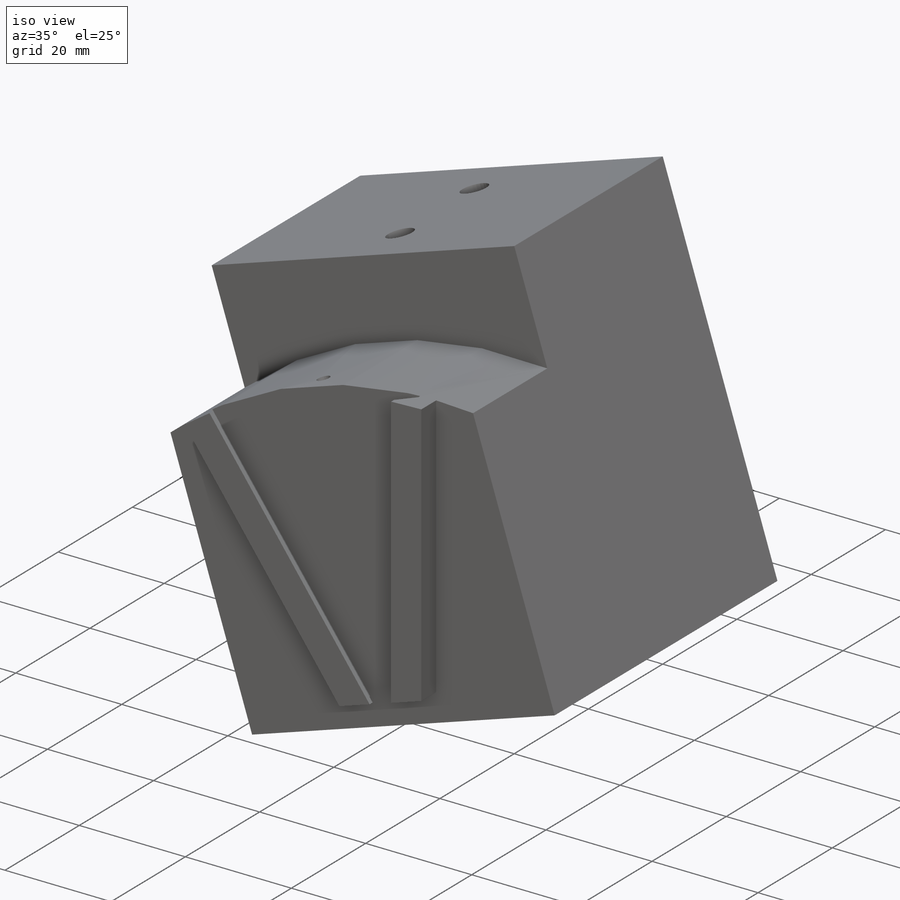
[diagram: iso view]
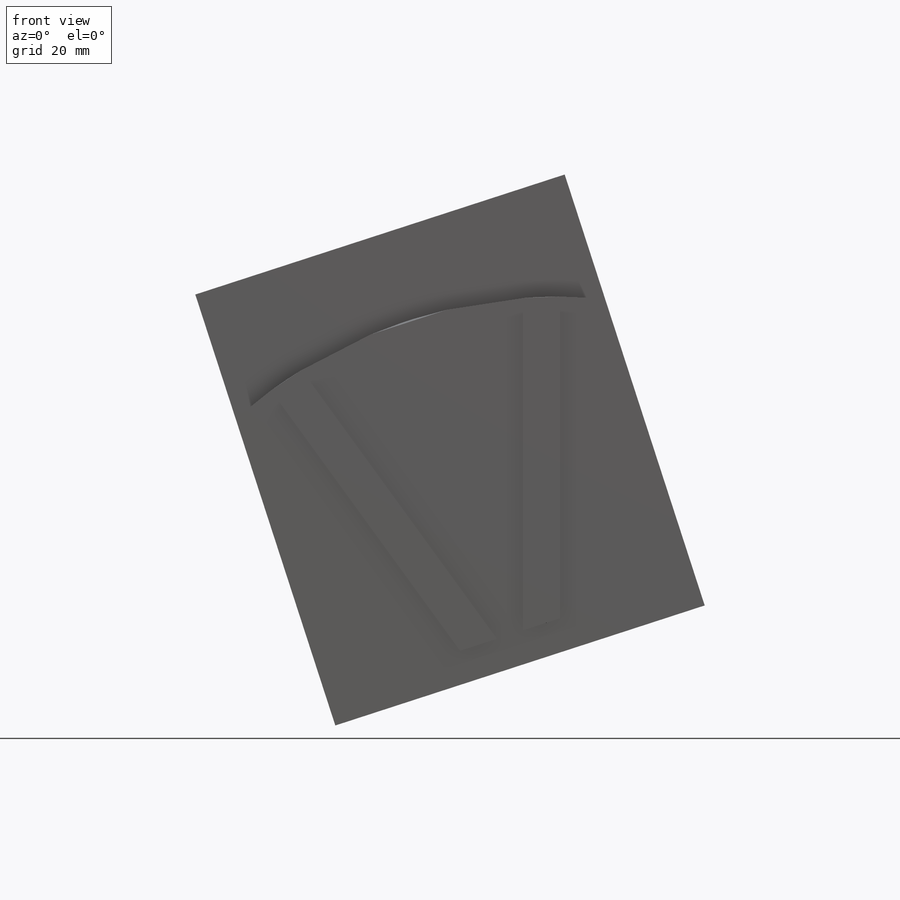
[diagram: front view]
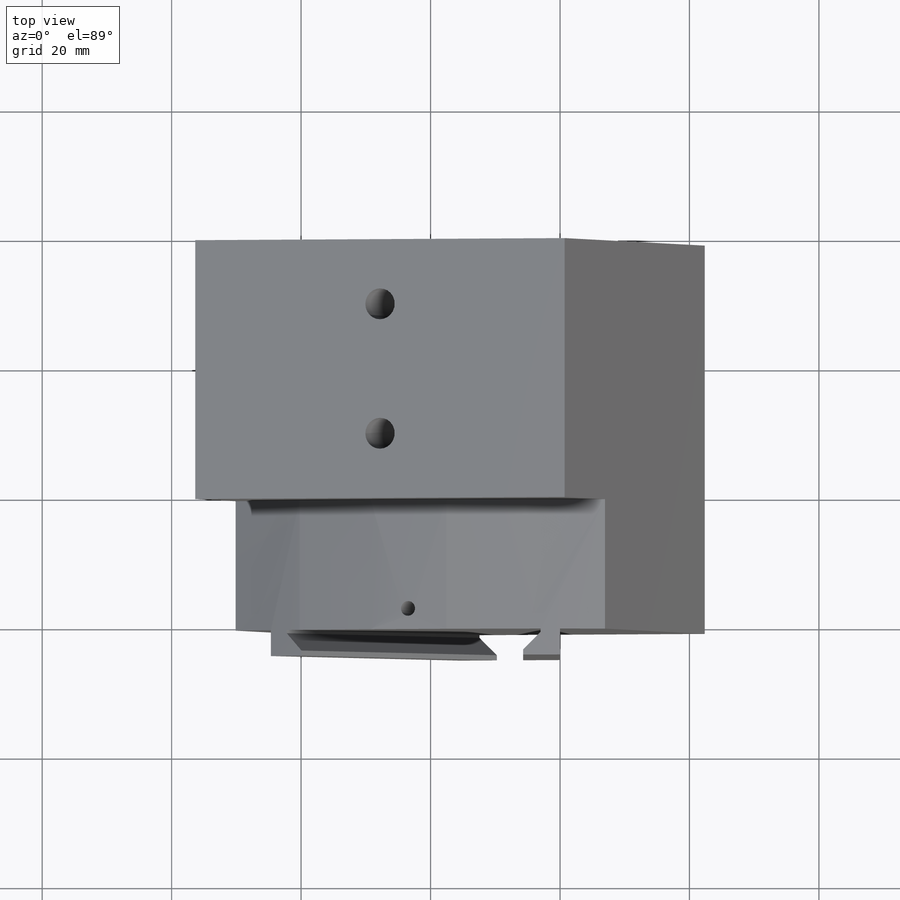
[diagram: top view]
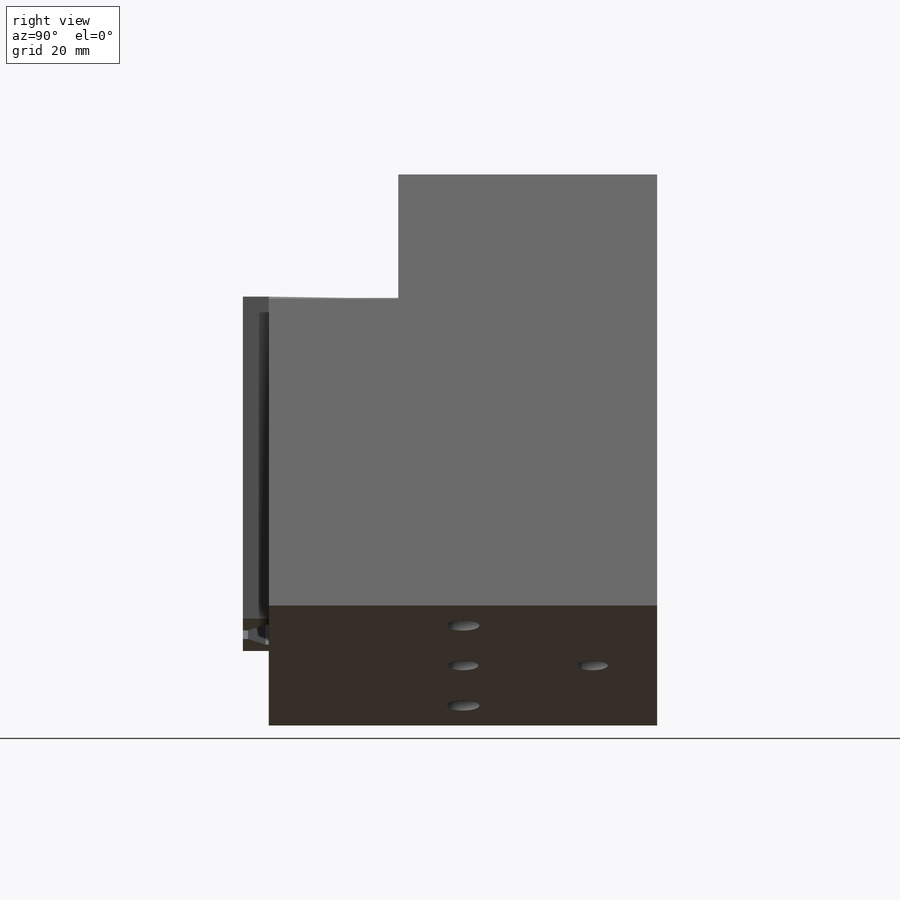
[diagram: right view]
SOLIDWORKS PART (.sldprt)
format: sldprt  version: not decoded by parser v0  size: 635,904 bytes
history: native  units: mm
features: sketch x23, cut_extrude x5, hole x5, extrude x4, thread x3, material x1, pattern_circular x1, plane x1 (+16 scaffold rows collapsed)
feature tree (59):
  scaffold x16  (default folders/planes/origin — collapsed)
  material  "6061-T6 (SS)"
  sketch  "Sketch1"  dims[D1=152.0mm D2=30.0mm]
  extrude  "Extrude1"  Depth=1mm
  sketch  "Sketch2"  dims[c1.D1=4.0mm c1.D2=~5.391079mm c2.D2=45.0deg c2.D3=6.32mm c2.D4=0.8mm c2.D1=4.0mm c2.D5=0.5mm c3.D3=2.5mm]
  extrude  "Extrude2"  [1 undecoded]
  sketch  "Sketch3"
  cut_extrude  "Extrude3"  [1 undecoded]
  pattern_circular  "CirPattern3"  Count=6 Angle=36deg
  sketch  "Sketch4"  dims[c1.D1=~2.890672mm c1.D2=~57.680336mm c2.D1=20.0mm c2.D2=60.0mm]
  extrude  "Extrude4"  Depth=60mm
  sketch  "Sketch6"
  cut_extrude  "Extrude7"  [1 undecoded]
  sketch  "Sketch7"
  cut_extrude  "Extrude8"  [1 undecoded]
  sketch  "Sketch8"
  cut_extrude  "Extrude9"  [1 undecoded]
  sketch  "Sketch15"  dims[D1=70.0mm]
  extrude  "Extrude13"  Depth=40mm
  sketch  "vert hole locations"  dims[c1.D1=3.175mm c1.D2=15.0mm c1.D3=10.0mm c2.D2=30.0mm]
  hole  "3/16 (0.1875) Diameter Hole1"  Diameter=4.7625mm Depth=15.88mm
  sketch  "Sketch18"
  sketch  "Sketch17"  dims[hole-wizard template sketch: 47 standard entries collapsed; hole parameters kept: c15.Hole Depth=15.88mm c15.D3=~14.816244mm c15.Drill Angle=118.0deg]
  hole  "3/16 (0.1875) Diameter Hole2"  Diameter=4.7625mm Depth=15.88mm
  sketch  "Sketch20"
  sketch  "Sketch19"  dims[hole-wizard template sketch: 47 standard entries collapsed; hole parameters kept: c15.Hole Depth=15.88mm c15.D3=~14.816244mm c15.Drill Angle=118.0deg]
  sketch  "horz hole locations"  dims[D1=3.175mm D2=10.0mm D3=10.0mm]
  hole  "1/8 (0.125) Diameter Hole3"  Diameter=3.175mm Depth=15.88mm
  sketch  "Sketch22"
  sketch  "Sketch21"  dims[hole-wizard template sketch: 47 standard entries collapsed; hole parameters kept: c15.Hole Depth=15.88mm c15.D3=~14.816244mm c15.Drill Angle=118.0deg]
  plane  "Plane1"  Offset=3.175mm
  sketch  "Sketch14"
  hole  "#4-40 Tapped Hole1"  Diameter=2.2606mm Depth=15mm
  sketch  "3DSketch1"  dims[D1=~76.057318mm]
  sketch  "Sketch13"  dims[hole-wizard template sketch: 47 standard entries collapsed; hole parameters kept: c15.Tap Drill Depth=15.0mm c15.D3=~14.816244mm c15.Drill Angle=118.0deg]
  thread  "Hole Thread1"  Diameter=5.69mm  [1 undecoded]
  sketch  "Sketch16"  dims[D1=25.0mm]
  cut_extrude  "Cut-Extrude1"  [1 undecoded]
  sketch  "Sketch23"  dims[D1=30.0mm D2=10.0mm]
  hole  "1/4-20 Tapped Hole1"  Diameter=5.1054mm Depth=16.51mm
  sketch  "Sketch25"
  sketch  "Sketch24"  dims[hole-wizard template sketch: 50 standard entries collapsed; hole parameters above]
  thread  "Hole Thread2"  Diameter=12.7mm  [1 undecoded]
  thread  "Hole Thread3"  Diameter=12.7mm  [1 undecoded]
decode coverage: 26 of 41 modeling features carry decoded parameters
note: ~ marks probable driven/reference dimensions
note: 9 parameter values undecoded
summary: no parameter record found for 6 features; Diameter pulled from absorbed wizard sketch
note: suppression state not decoded; provenance and decode notes live in map.json
